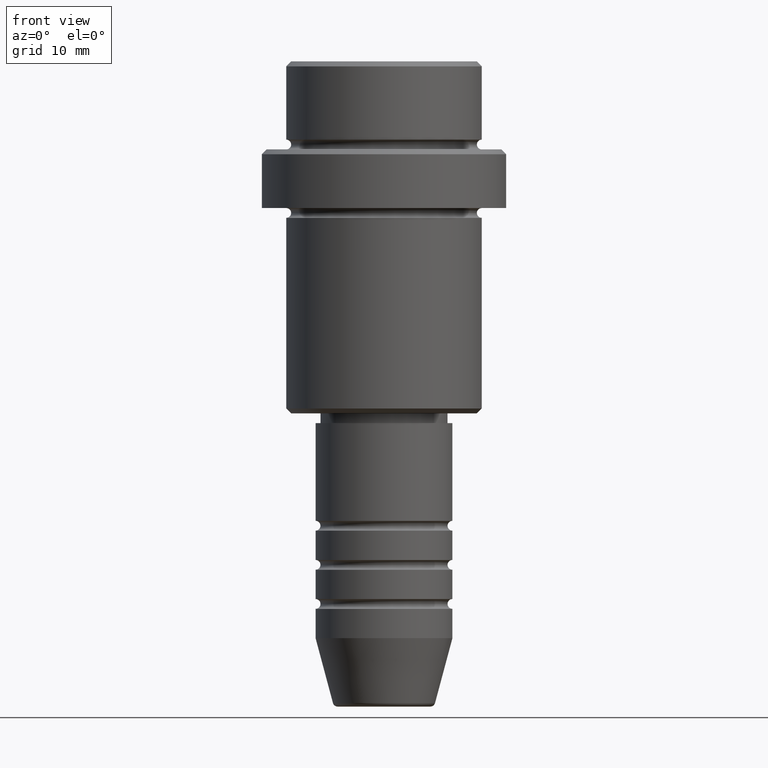
[diagram: clean part render]
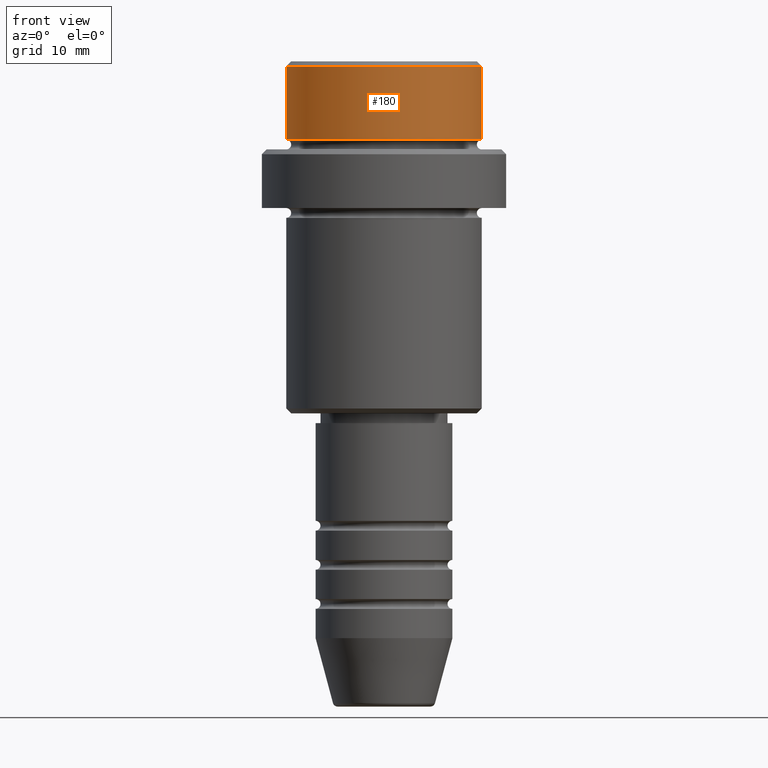
[diagram: same view with one face highlighted and labeled with its STEP entity id]
A machine part, front view. The second image highlights one B-rep face of the part: STEP entity #180.
In plain terms, the highlighted cylindrical surface (partial cylindrical patch) has radius 10 mm, axis along (-0, -0, 1).
Its self-contained STEP definition (entity closure, byte-faithful):
#55 = DIRECTION ( 'NONE',  ( -0.000000000000000000, -0.000000000000000000, 1.000000000000000000 ) ) ;
#75 = EDGE_CURVE ( 'NONE', #1194, #575, #544, .T. ) ;
#80 = EDGE_LOOP ( 'NONE', ( #622, #533, #276, #1256 ) ) ;
#146 = CARTESIAN_POINT ( 'NONE',  ( 9.999999999999998224, 0.000000000000000000, -0.4999999999999970024 ) ) ;
#159 = DIRECTION ( 'NONE',  ( 0.000000000000000000, 0.000000000000000000, -1.000000000000000000 ) ) ;
#164 = CYLINDRICAL_SURFACE ( 'NONE', #1383, 9.999999999999998224 ) ;
#180 = ADVANCED_FACE ( 'NONE', ( #1142 ), #164, .T. ) ;
#250 = CARTESIAN_POINT ( 'NONE',  ( -9.999999999999998224, 1.224646799147353059E-15, -0.4999999999999970024 ) ) ;
#276 = ORIENTED_EDGE ( 'NONE', *, *, #686, .T. ) ;
#289 = VECTOR ( 'NONE', #399, 1000.000000000000000 ) ;
#374 = AXIS2_PLACEMENT_3D ( 'NONE', #442, #1313, #772 ) ;
#381 = LINE ( 'NONE', #1125, #1183 ) ;
#399 = DIRECTION ( 'NONE',  ( -0.000000000000000000, -0.000000000000000000, 1.000000000000000000 ) ) ;
#420 = CARTESIAN_POINT ( 'NONE',  ( 9.999999999999998224, 0.000000000000000000, -7.999999999999998224 ) ) ;
#442 = CARTESIAN_POINT ( 'NONE',  ( 0.000000000000000000, 0.000000000000000000, -7.999999999999998224 ) ) ;
#483 = CARTESIAN_POINT ( 'NONE',  ( -9.999999999999998224, 1.224646799147353059E-15, -7.999999999999998224 ) ) ;
#489 = DIRECTION ( 'NONE',  ( 1.000000000000000000, 0.000000000000000000, 0.000000000000000000 ) ) ;
#502 = LINE ( 'NONE', #1374, #289 ) ;
#511 = EDGE_CURVE ( 'NONE', #974, #741, #1016, .T. ) ;
#533 = ORIENTED_EDGE ( 'NONE', *, *, #511, .T. ) ;
#544 = CIRCLE ( 'NONE', #1184, 9.999999999999998224 ) ;
#575 = VERTEX_POINT ( 'NONE', #250 ) ;
#622 = ORIENTED_EDGE ( 'NONE', *, *, #895, .F. ) ;
#686 = EDGE_CURVE ( 'NONE', #741, #1194, #502, .T. ) ;
#741 = VERTEX_POINT ( 'NONE', #420 ) ;
#772 = DIRECTION ( 'NONE',  ( 1.000000000000000000, 0.000000000000000000, 0.000000000000000000 ) ) ;
#801 = DIRECTION ( 'NONE',  ( 1.000000000000000000, 0.000000000000000000, 0.000000000000000000 ) ) ;
#812 = DIRECTION ( 'NONE',  ( -0.000000000000000000, -0.000000000000000000, 1.000000000000000000 ) ) ;
#895 = EDGE_CURVE ( 'NONE', #974, #575, #381, .T. ) ;
#914 = CARTESIAN_POINT ( 'NONE',  ( 0.000000000000000000, 0.000000000000000000, -0.4999999999999970024 ) ) ;
#974 = VERTEX_POINT ( 'NONE', #483 ) ;
#1016 = CIRCLE ( 'NONE', #374, 9.999999999999998224 ) ;
#1038 = CARTESIAN_POINT ( 'NONE',  ( 0.000000000000000000, 0.000000000000000000, 0.000000000000000000 ) ) ;
#1125 = CARTESIAN_POINT ( 'NONE',  ( -9.999999999999998224, 1.224646799147353059E-15, 0.000000000000000000 ) ) ;
#1142 = FACE_OUTER_BOUND ( 'NONE', #80, .T. ) ;
#1183 = VECTOR ( 'NONE', #812, 1000.000000000000000 ) ;
#1184 = AXIS2_PLACEMENT_3D ( 'NONE', #914, #159, #801 ) ;
#1194 = VERTEX_POINT ( 'NONE', #146 ) ;
#1256 = ORIENTED_EDGE ( 'NONE', *, *, #75, .T. ) ;
#1313 = DIRECTION ( 'NONE',  ( -0.000000000000000000, -0.000000000000000000, 1.000000000000000000 ) ) ;
#1374 = CARTESIAN_POINT ( 'NONE',  ( 9.999999999999998224, 0.000000000000000000, 0.000000000000000000 ) ) ;
#1383 = AXIS2_PLACEMENT_3D ( 'NONE', #1038, #55, #489 ) ;